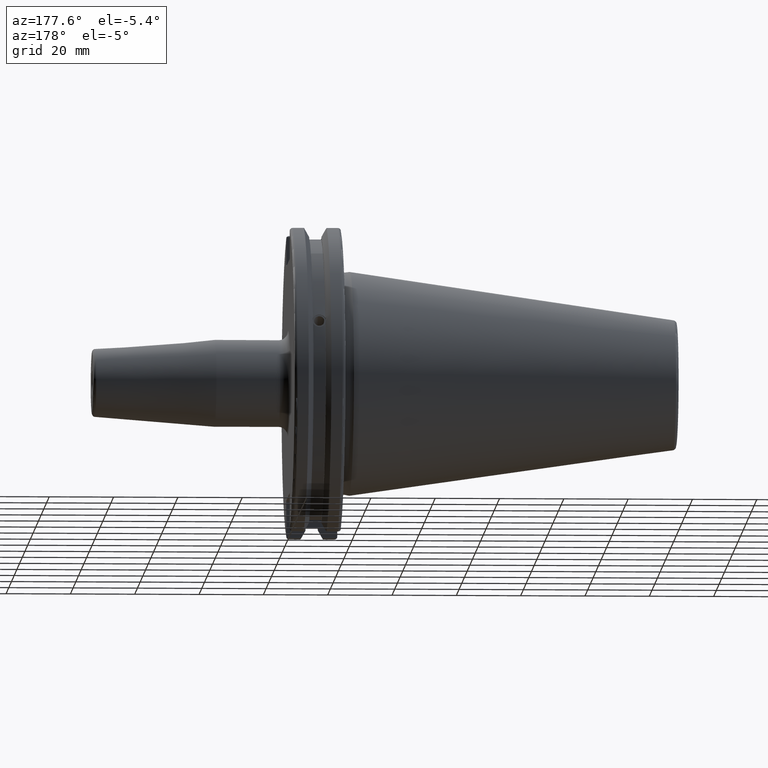
[diagram: clean part render]
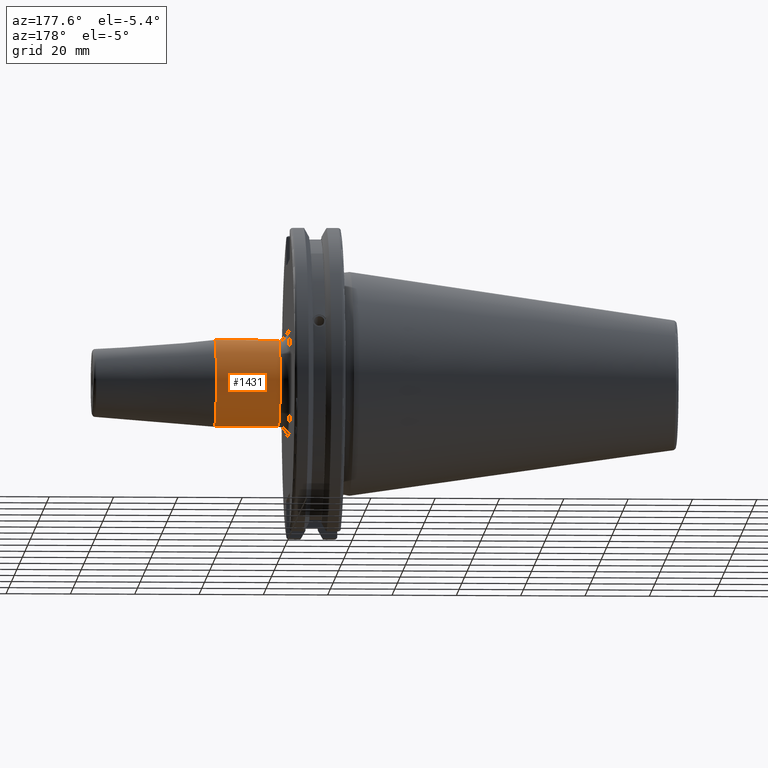
[diagram: same view with one face highlighted and labeled with its STEP entity id]
A machine part, auxiliary view. The second image highlights one B-rep face of the part: STEP entity #1431.
In plain terms, the highlighted cylindrical surface (bore or boss wall) has radius 13.5 mm, axis along (1, 0, 0).
Its self-contained STEP definition (entity closure, byte-faithful):
#85=LINE('',#2139,#175);
#175=VECTOR('',#1738,13.5);
#264=CYLINDRICAL_SURFACE('',#1552,13.5);
#352=FACE_OUTER_BOUND('',#437,.T.);
#437=EDGE_LOOP('',(#1003,#1004,#1005,#1006,#1007));
#543=CIRCLE('',#1546,13.5);
#544=CIRCLE('',#1548,13.5);
#547=CIRCLE('',#1551,13.5);
#615=VERTEX_POINT('',#2127);
#616=VERTEX_POINT('',#2131);
#617=VERTEX_POINT('',#2132);
#767=EDGE_CURVE('',#615,#615,#543,.T.);
#768=EDGE_CURVE('',#616,#617,#544,.T.);
#771=EDGE_CURVE('',#617,#616,#547,.T.);
#772=EDGE_CURVE('',#615,#616,#85,.T.);
#1003=ORIENTED_EDGE('',*,*,#767,.F.);
#1004=ORIENTED_EDGE('',*,*,#772,.T.);
#1005=ORIENTED_EDGE('',*,*,#771,.F.);
#1006=ORIENTED_EDGE('',*,*,#768,.F.);
#1007=ORIENTED_EDGE('',*,*,#772,.F.);
#1431=ADVANCED_FACE('',(#352),#264,.T.);
#1546=AXIS2_PLACEMENT_3D('',#2129,#1724,#1725);
#1548=AXIS2_PLACEMENT_3D('',#2133,#1728,#1729);
#1551=AXIS2_PLACEMENT_3D('',#2137,#1734,#1735);
#1552=AXIS2_PLACEMENT_3D('',#2138,#1736,#1737);
#1724=DIRECTION('center_axis',(1.,0.,0.));
#1725=DIRECTION('ref_axis',(0.,0.,-1.));
#1728=DIRECTION('center_axis',(-1.,0.,0.));
#1729=DIRECTION('ref_axis',(0.,-1.,-1.22464679914735E-16));
#1734=DIRECTION('center_axis',(-1.,0.,0.));
#1735=DIRECTION('ref_axis',(0.,-1.,-1.22464679914735E-16));
#1736=DIRECTION('center_axis',(1.,0.,0.));
#1737=DIRECTION('ref_axis',(0.,1.,0.));
#1738=DIRECTION('',(-1.,0.,0.));
#2127=CARTESIAN_POINT('',(41.8813857914757,-13.5,-1.65327317884893E-15));
#2129=CARTESIAN_POINT('Origin',(41.8813857914757,0.,0.));
#2131=CARTESIAN_POINT('',(22.05,-13.5,-1.65327317884893E-15));
#2132=CARTESIAN_POINT('',(22.05,-1.65327317884893E-15,-13.5));
#2133=CARTESIAN_POINT('Origin',(22.05,0.,0.));
#2137=CARTESIAN_POINT('Origin',(22.05,0.,0.));
#2138=CARTESIAN_POINT('Origin',(30.4656928957378,0.,0.));
#2139=CARTESIAN_POINT('',(30.4656928957378,-13.5,-1.65327317884893E-15));